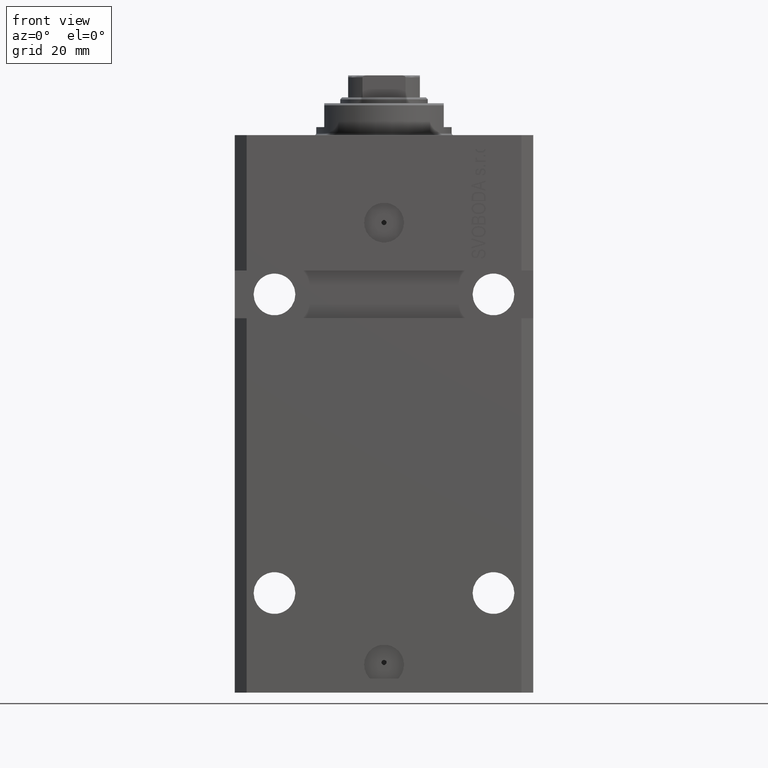
[diagram: clean part render]
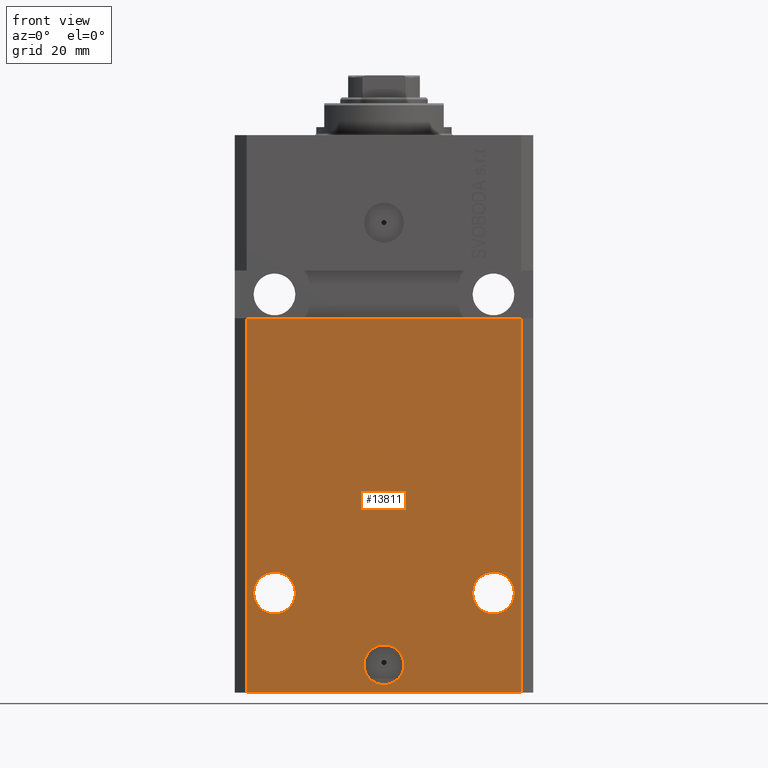
[diagram: same view with one face highlighted and labeled with its STEP entity id]
A machine part, front view. The second image highlights one B-rep face of the part: STEP entity #13811.
In plain terms, the highlighted planar face has unit normal (0, -1, 0).
Its self-contained STEP definition (entity closure, byte-faithful):
#1377 = VECTOR ( 'NONE', #8890, 1000.000000000000000 ) ;
#1604 = ORIENTED_EDGE ( 'NONE', *, *, #17069, .F. ) ;
#1850 = CARTESIAN_POINT ( 'NONE',  ( -32.75000000000001421, -27.50000000000000000, -114.9999999999999858 ) ) ;
#1889 = CARTESIAN_POINT ( 'NONE',  ( 34.49999999999999289, -27.49999999999999645, -140.0000000000000000 ) ) ;
#2621 = VECTOR ( 'NONE', #16712, 1000.000000000000000 ) ;
#2794 = CIRCLE ( 'NONE', #41023, 5.249999999999997335 ) ;
#2968 = VERTEX_POINT ( 'NONE', #36011 ) ;
#3012 = AXIS2_PLACEMENT_3D ( 'NONE', #26290, #26522, #18409 ) ;
#3970 = DIRECTION ( 'NONE',  ( 1.000000000000000000, 0.000000000000000000, 0.000000000000000000 ) ) ;
#4319 = VECTOR ( 'NONE', #20602, 1000.000000000000000 ) ;
#6462 = EDGE_CURVE ( 'NONE', #42761, #9380, #46587, .T. ) ;
#6737 = EDGE_CURVE ( 'NONE', #25882, #10754, #25205, .T. ) ;
#8054 = ORIENTED_EDGE ( 'NONE', *, *, #28336, .F. ) ;
#8447 = VERTEX_POINT ( 'NONE', #13932 ) ;
#8890 = DIRECTION ( 'NONE',  ( 0.000000000000000000, 0.000000000000000000, 1.000000000000000000 ) ) ;
#9380 = VERTEX_POINT ( 'NONE', #31742 ) ;
#9728 = CARTESIAN_POINT ( 'NONE',  ( -34.49999999999998579, -27.49999999999999645, -140.0000000000000000 ) ) ;
#9788 = DIRECTION ( 'NONE',  ( 1.000000000000000000, 0.000000000000000000, 0.000000000000000000 ) ) ;
#10582 = ORIENTED_EDGE ( 'NONE', *, *, #6737, .F. ) ;
#10741 = CARTESIAN_POINT ( 'NONE',  ( 0.000000000000000000, -27.49999999999999645, -133.0000000000000000 ) ) ;
#10754 = VERTEX_POINT ( 'NONE', #24930 ) ;
#10779 = CARTESIAN_POINT ( 'NONE',  ( -27.50000000000001776, -27.50000000000000000, -114.9999999999999858 ) ) ;
#12473 = LINE ( 'NONE', #41677, #1377 ) ;
#13588 = LINE ( 'NONE', #28203, #2621 ) ;
#13811 = ADVANCED_FACE ( 'NONE', ( #39825, #14674, #25469, #28824 ), #32175, .T. ) ;
#13883 = CARTESIAN_POINT ( 'NONE',  ( -37.50000000000000000, -27.50000000000000000, -46.00000000000000000 ) ) ;
#13932 = CARTESIAN_POINT ( 'NONE',  ( -34.49999999999998579, -27.50000000000000000, -46.00000000000000000 ) ) ;
#13973 = VERTEX_POINT ( 'NONE', #1889 ) ;
#14513 = DIRECTION ( 'NONE',  ( 1.176083712526788232E-16, -1.000000000000000000, 0.000000000000000000 ) ) ;
#14589 = DIRECTION ( 'NONE',  ( -1.000000000000000000, 0.000000000000000000, 0.000000000000000000 ) ) ;
#14674 = FACE_BOUND ( 'NONE', #32110, .T. ) ;
#15544 = VERTEX_POINT ( 'NONE', #32399 ) ;
#16712 = DIRECTION ( 'NONE',  ( 0.000000000000000000, 0.000000000000000000, 1.000000000000000000 ) ) ;
#17064 = CIRCLE ( 'NONE', #43810, 5.000000000000006217 ) ;
#17069 = EDGE_CURVE ( 'NONE', #2968, #34193, #17064, .T. ) ;
#18099 = EDGE_CURVE ( 'NONE', #34193, #2968, #22458, .T. ) ;
#18409 = DIRECTION ( 'NONE',  ( -1.000000000000000000, 0.000000000000000000, 0.000000000000000000 ) ) ;
#18792 = AXIS2_PLACEMENT_3D ( 'NONE', #31429, #35720, #28065 ) ;
#18821 = CARTESIAN_POINT ( 'NONE',  ( 27.50000000000001776, -27.49999999999999289, -114.9999999999999858 ) ) ;
#19567 = ORIENTED_EDGE ( 'NONE', *, *, #6462, .F. ) ;
#19866 = AXIS2_PLACEMENT_3D ( 'NONE', #18821, #14513, #3970 ) ;
#20602 = DIRECTION ( 'NONE',  ( 1.000000000000000000, 9.251858538542972814E-17, 9.251858538542972814E-17 ) ) ;
#21158 = CARTESIAN_POINT ( 'NONE',  ( -34.49999999999998579, -27.49999999999999645, -140.0000000000000000 ) ) ;
#22458 = CIRCLE ( 'NONE', #28585, 5.000000000000006217 ) ;
#23678 = CARTESIAN_POINT ( 'NONE',  ( -34.49999999999998579, -27.49999999999999645, -140.0000000000000000 ) ) ;
#23718 = EDGE_CURVE ( 'NONE', #30765, #8447, #13588, .T. ) ;
#24124 = CIRCLE ( 'NONE', #18792, 5.249999999999997335 ) ;
#24439 = CARTESIAN_POINT ( 'NONE',  ( 0.000000000000000000, -27.49999999999999645, -133.0000000000000000 ) ) ;
#24634 = DIRECTION ( 'NONE',  ( 1.000000000000000000, 0.000000000000000000, 0.000000000000000000 ) ) ;
#24819 = EDGE_CURVE ( 'NONE', #30765, #13973, #38051, .T. ) ;
#24930 = CARTESIAN_POINT ( 'NONE',  ( 22.25000000000002132, -27.49999999999999289, -114.9999999999999858 ) ) ;
#25205 = CIRCLE ( 'NONE', #19866, 5.249999999999997335 ) ;
#25469 = FACE_BOUND ( 'NONE', #41425, .T. ) ;
#25840 = DIRECTION ( 'NONE',  ( 1.176083712526788232E-16, -1.000000000000000000, 0.000000000000000000 ) ) ;
#25882 = VERTEX_POINT ( 'NONE', #28231 ) ;
#26290 = CARTESIAN_POINT ( 'NONE',  ( -27.50000000000001776, -27.50000000000000000, -114.9999999999999858 ) ) ;
#26522 = DIRECTION ( 'NONE',  ( 1.176083712526788232E-16, -1.000000000000000000, 0.000000000000000000 ) ) ;
#26574 = EDGE_CURVE ( 'NONE', #10754, #25882, #24124, .T. ) ;
#27087 = DIRECTION ( 'NONE',  ( 1.000000000000000000, 0.000000000000000000, 0.000000000000000000 ) ) ;
#27215 = ORIENTED_EDGE ( 'NONE', *, *, #18099, .F. ) ;
#28065 = DIRECTION ( 'NONE',  ( 1.000000000000000000, 0.000000000000000000, 0.000000000000000000 ) ) ;
#28174 = ORIENTED_EDGE ( 'NONE', *, *, #24819, .T. ) ;
#28203 = CARTESIAN_POINT ( 'NONE',  ( -34.49999999999998579, -27.49999999999999645, -140.0000000000000000 ) ) ;
#28231 = CARTESIAN_POINT ( 'NONE',  ( 32.75000000000001421, -27.49999999999999289, -114.9999999999999858 ) ) ;
#28240 = EDGE_CURVE ( 'NONE', #8447, #15544, #35217, .T. ) ;
#28336 = EDGE_CURVE ( 'NONE', #9380, #42761, #2794, .T. ) ;
#28585 = AXIS2_PLACEMENT_3D ( 'NONE', #10741, #43523, #24634 ) ;
#28824 = FACE_OUTER_BOUND ( 'NONE', #34974, .T. ) ;
#29211 = AXIS2_PLACEMENT_3D ( 'NONE', #21158, #32886, #47239 ) ;
#30765 = VERTEX_POINT ( 'NONE', #9728 ) ;
#30928 = CARTESIAN_POINT ( 'NONE',  ( 5.000000000000006217, -27.49999999999999645, -133.0000000000000000 ) ) ;
#31429 = CARTESIAN_POINT ( 'NONE',  ( 27.50000000000001776, -27.49999999999999289, -114.9999999999999858 ) ) ;
#31742 = CARTESIAN_POINT ( 'NONE',  ( -22.25000000000002132, -27.50000000000000000, -114.9999999999999858 ) ) ;
#32110 = EDGE_LOOP ( 'NONE', ( #10582, #46596 ) ) ;
#32175 = PLANE ( 'NONE',  #29211 ) ;
#32399 = CARTESIAN_POINT ( 'NONE',  ( 34.49999999999999289, -27.49999999999999289, -45.99999999999999289 ) ) ;
#32689 = EDGE_CURVE ( 'NONE', #13973, #15544, #12473, .T. ) ;
#32886 = DIRECTION ( 'NONE',  ( 0.000000000000000000, -1.000000000000000000, 0.000000000000000000 ) ) ;
#34193 = VERTEX_POINT ( 'NONE', #30928 ) ;
#34377 = ORIENTED_EDGE ( 'NONE', *, *, #32689, .T. ) ;
#34974 = EDGE_LOOP ( 'NONE', ( #39020, #42273, #28174, #34377 ) ) ;
#35217 = LINE ( 'NONE', #13883, #4319 ) ;
#35720 = DIRECTION ( 'NONE',  ( 1.176083712526788232E-16, -1.000000000000000000, 0.000000000000000000 ) ) ;
#36011 = CARTESIAN_POINT ( 'NONE',  ( -5.000000000000006217, -27.49999999999999645, -133.0000000000000000 ) ) ;
#38051 = LINE ( 'NONE', #23678, #46243 ) ;
#39020 = ORIENTED_EDGE ( 'NONE', *, *, #28240, .F. ) ;
#39051 = DIRECTION ( 'NONE',  ( 1.176083712526788232E-16, -1.000000000000000000, 0.000000000000000000 ) ) ;
#39825 = FACE_BOUND ( 'NONE', #45711, .T. ) ;
#41023 = AXIS2_PLACEMENT_3D ( 'NONE', #10779, #25840, #14589 ) ;
#41425 = EDGE_LOOP ( 'NONE', ( #8054, #19567 ) ) ;
#41677 = CARTESIAN_POINT ( 'NONE',  ( 34.49999999999999289, -27.49999999999999645, -140.0000000000000000 ) ) ;
#42273 = ORIENTED_EDGE ( 'NONE', *, *, #23718, .F. ) ;
#42761 = VERTEX_POINT ( 'NONE', #1850 ) ;
#43523 = DIRECTION ( 'NONE',  ( 1.176083712526788232E-16, -1.000000000000000000, 0.000000000000000000 ) ) ;
#43810 = AXIS2_PLACEMENT_3D ( 'NONE', #24439, #39051, #27087 ) ;
#45711 = EDGE_LOOP ( 'NONE', ( #27215, #1604 ) ) ;
#46243 = VECTOR ( 'NONE', #9788, 1000.000000000000000 ) ;
#46587 = CIRCLE ( 'NONE', #3012, 5.249999999999997335 ) ;
#46596 = ORIENTED_EDGE ( 'NONE', *, *, #26574, .F. ) ;
#47239 = DIRECTION ( 'NONE',  ( 0.000000000000000000, -0.000000000000000000, -1.000000000000000000 ) ) ;